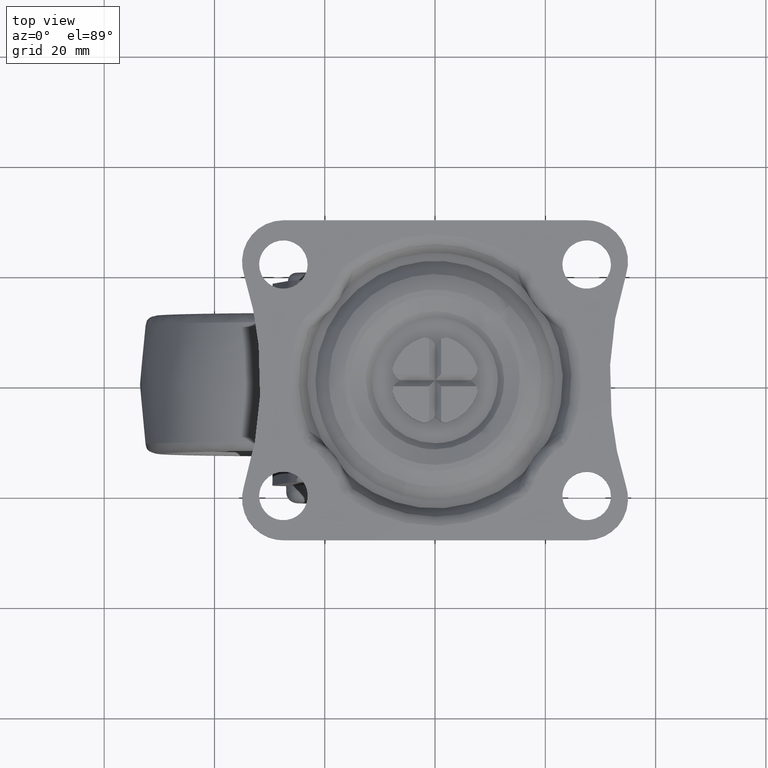
[diagram: clean part render]
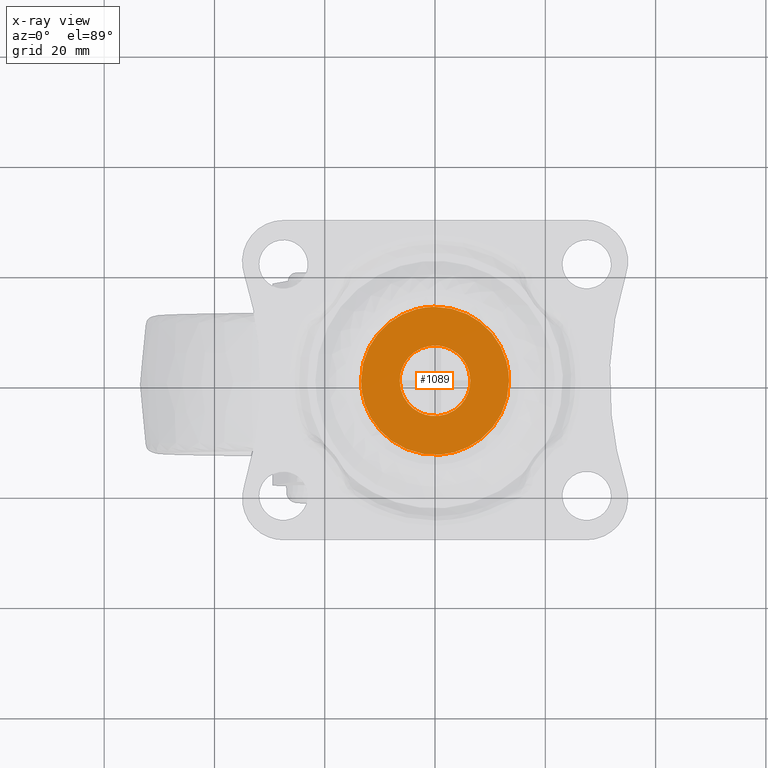
[diagram: x-ray — body ghosted, one internal face saturated and labeled with its STEP entity id]
A machine part, top view, then the same camera in x-ray: the body is ghosted and one INTERNAL B-rep face — a face not visible from any outside direction — is saturated and labeled: STEP entity #1089.
In plain terms, the highlighted face is a freeform B-spline surface patch.
Its self-contained STEP definition (entity closure, byte-faithful):
#85=CARTESIAN_POINT('',(-0.755419101927816,-6.355260968712657,-7.400002000000000));
#86=VERTEX_POINT('',#85);
#92=CARTESIAN_POINT('',(6.400000000000014,0.0,-7.400002000000000));
#93=VERTEX_POINT('',#92);
#94=CARTESIAN_POINT('',(-0.755419101927816,-6.355260968712657,-7.400002000000000));
#95=CARTESIAN_POINT('',(-0.379034365898103,-6.400000000000000,-7.400002000000000));
#96=CARTESIAN_POINT('',(1.272505E-014,-6.400000000000000,-7.400002000000000));
#97=CARTESIAN_POINT('',(6.400000000000012,-6.400000000000000,-7.400001999999999));
#98=CARTESIAN_POINT('',(6.400000000000014,0.0,-7.400002000000000));
#106=(BOUNDED_CURVE()B_SPLINE_CURVE(2,(#94,#95,#96,#97,#98),.UNSPECIFIED.,.F.,.U.)B_SPLINE_CURVE_WITH_KNOTS((3,2,3),(0.229562473509019,0.250000000000000,0.500000000000000),.UNSPECIFIED.)CURVE()GEOMETRIC_REPRESENTATION_ITEM()RATIONAL_B_SPLINE_CURVE((0.956026754174899,0.976055948325885,1.0,0.707106781186548,1.0))REPRESENTATION_ITEM(''));
#107=EDGE_CURVE('',#86,#93,#106,.T.);
#109=CARTESIAN_POINT('',(0.390710653168339,6.388062709891065,-7.400002000000000));
#110=VERTEX_POINT('',#109);
#111=CARTESIAN_POINT('',(6.400000000000014,0.0,-7.400002000000000));
#112=CARTESIAN_POINT('',(6.400000000000012,6.020518827922171,-7.400001999999998));
#113=CARTESIAN_POINT('',(0.390710653168339,6.388062709891065,-7.400002000000001));
#121=(BOUNDED_CURVE()B_SPLINE_CURVE(2,(#111,#112,#113),.UNSPECIFIED.,.F.,.U.)B_SPLINE_CURVE_WITH_KNOTS((3,3),(0.500000000000000,0.739332962234122),.UNSPECIFIED.)CURVE()GEOMETRIC_REPRESENTATION_ITEM()RATIONAL_B_SPLINE_CURVE((1.0,0.719603993292358,0.976072041656386))REPRESENTATION_ITEM(''));
#122=EDGE_CURVE('',#93,#110,#121,.T.);
#196=CARTESIAN_POINT('',(-6.399999999999987,0.0,-7.400002000000000));
#197=VERTEX_POINT('',#196);
#198=CARTESIAN_POINT('',(0.390710653168339,6.388062709891065,-7.400002000000000));
#199=CARTESIAN_POINT('',(0.195537685256630,6.400000000000000,-7.400002000000000));
#200=CARTESIAN_POINT('',(1.272505E-014,6.400000000000000,-7.400002000000000));
#201=CARTESIAN_POINT('',(-6.399999999999985,6.400000000000000,-7.400001999999999));
#202=CARTESIAN_POINT('',(-6.399999999999987,0.0,-7.400002000000000));
#210=(BOUNDED_CURVE()B_SPLINE_CURVE(2,(#198,#199,#200,#201,#202),.UNSPECIFIED.,.F.,.U.)B_SPLINE_CURVE_WITH_KNOTS((3,2,3),(0.739332962234122,0.750000000000000,1.0),.UNSPECIFIED.)CURVE()GEOMETRIC_REPRESENTATION_ITEM()RATIONAL_B_SPLINE_CURVE((0.976072041656386,0.987502787894190,1.0,0.707106781186548,1.0))REPRESENTATION_ITEM(''));
#211=EDGE_CURVE('',#110,#197,#210,.T.);
#213=CARTESIAN_POINT('',(-6.399999999999987,0.0,-7.400002000000000));
#214=CARTESIAN_POINT('',(-6.399999999999985,-5.684316965864336,-7.400001999999998));
#215=CARTESIAN_POINT('',(-0.755419101927816,-6.355260968712657,-7.400002000000001));
#223=(BOUNDED_CURVE()B_SPLINE_CURVE(2,(#213,#214,#215),.UNSPECIFIED.,.F.,.U.)B_SPLINE_CURVE_WITH_KNOTS((3,3),(0.0,0.229562473509019),.UNSPECIFIED.)CURVE()GEOMETRIC_REPRESENTATION_ITEM()RATIONAL_B_SPLINE_CURVE((1.0,0.731050832860663,0.956026754174899))REPRESENTATION_ITEM(''));
#224=EDGE_CURVE('',#197,#86,#223,.T.);
#855=CARTESIAN_POINT('',(0.936053228665732,-13.390664404581671,-7.400002000434680));
#856=VERTEX_POINT('',#855);
#857=CARTESIAN_POINT('',(-13.423341194979500,0.0,-7.400002000000000));
#858=VERTEX_POINT('',#857);
#859=CARTESIAN_POINT('',(0.936053228665732,-13.390664404581667,-7.400002000434680));
#860=CARTESIAN_POINT('',(0.468596973318905,-13.423341194979503,-7.400002000000000));
#861=CARTESIAN_POINT('',(0.0,-13.423341194979500,-7.400002000000000));
#862=CARTESIAN_POINT('',(-13.423341194979502,-13.423341194979502,-7.400001999999999));
#863=CARTESIAN_POINT('',(-13.423341194979500,0.0,-7.400002000000000));
#871=(BOUNDED_CURVE()B_SPLINE_CURVE(2,(#859,#860,#861,#862,#863),.UNSPECIFIED.,.F.,.U.)B_SPLINE_CURVE_WITH_KNOTS((3,2,3),(0.737833686532125,0.750000000000000,1.0),.UNSPECIFIED.)CURVE()GEOMETRIC_REPRESENTATION_ITEM()RATIONAL_B_SPLINE_CURVE((0.972879876380702,0.985746277149203,1.0,0.707106781186548,1.0))REPRESENTATION_ITEM(''));
#872=EDGE_CURVE('',#856,#858,#871,.T.);
#874=CARTESIAN_POINT('',(-0.168678240991914,13.422281344651530,-7.400002000500553));
#875=VERTEX_POINT('',#874);
#876=CARTESIAN_POINT('',(-13.423341194979500,0.0,-7.400002000000000));
#877=CARTESIAN_POINT('',(-13.423341194979503,13.255709568933391,-7.400001999999999));
#878=CARTESIAN_POINT('',(-0.168678240991914,13.422281344651532,-7.400002000500553));
#886=(BOUNDED_CURVE()B_SPLINE_CURVE(2,(#876,#877,#878),.UNSPECIFIED.,.F.,.U.)B_SPLINE_CURVE_WITH_KNOTS((3,3),(0.0,0.247784295917414),.UNSPECIFIED.)CURVE()GEOMETRIC_REPRESENTATION_ITEM()RATIONAL_B_SPLINE_CURVE((1.0,0.709702639989294,0.994854295634084))REPRESENTATION_ITEM(''));
#887=EDGE_CURVE('',#858,#875,#886,.T.);
#989=CARTESIAN_POINT('',(13.423341194979500,0.0,-7.400002000000000));
#990=VERTEX_POINT('',#989);
#991=CARTESIAN_POINT('',(13.423341194979500,0.0,-7.400002000000000));
#992=CARTESIAN_POINT('',(13.423341194979503,-12.517760277530748,-7.400002000000001));
#993=CARTESIAN_POINT('',(0.936053228665732,-13.390664404581676,-7.400002000434680));
#1001=(BOUNDED_CURVE()B_SPLINE_CURVE(2,(#991,#992,#993),.UNSPECIFIED.,.F.,.U.)B_SPLINE_CURVE_WITH_KNOTS((3,3),(0.500000000000000,0.737833686532125),.UNSPECIFIED.)CURVE()GEOMETRIC_REPRESENTATION_ITEM()RATIONAL_B_SPLINE_CURVE((1.0,0.721360504037345,0.972879876380702))REPRESENTATION_ITEM(''));
#1002=EDGE_CURVE('',#990,#856,#1001,.T.);
#1036=CARTESIAN_POINT('',(-0.168678240991914,13.422281344651529,-7.400002000500553));
#1037=CARTESIAN_POINT('',(-0.084342450239262,13.423341194979505,-7.400002000000000));
#1038=CARTESIAN_POINT('',(0.0,13.423341194979500,-7.400002000000000));
#1039=CARTESIAN_POINT('',(13.423341194979502,13.423341194979502,-7.400001999999999));
#1040=CARTESIAN_POINT('',(13.423341194979500,0.0,-7.400002000000000));
#1048=(BOUNDED_CURVE()B_SPLINE_CURVE(2,(#1036,#1037,#1038,#1039,#1040),.UNSPECIFIED.,.F.,.U.)B_SPLINE_CURVE_WITH_KNOTS((3,2,3),(0.247784295917414,0.250000000000000,0.500000000000000),.UNSPECIFIED.)CURVE()GEOMETRIC_REPRESENTATION_ITEM()RATIONAL_B_SPLINE_CURVE((0.994854295634084,0.997404141197254,1.0,0.707106781186548,1.0))REPRESENTATION_ITEM(''));
#1049=EDGE_CURVE('',#875,#990,#1048,.T.);
#1072=CARTESIAN_POINT('',(-14.764332580391221,-14.762672511267271,-7.400002000000000));
#1073=CARTESIAN_POINT('',(14.764331620279039,-14.762672511267271,-7.400002000000000));
#1074=CARTESIAN_POINT('',(-14.764332580391221,14.763144384860350,-7.400002000000000));
#1075=CARTESIAN_POINT('',(14.764331620279039,14.763144384860350,-7.400002000000000));
#1076=B_SPLINE_SURFACE_WITH_KNOTS('',1,1,((#1072,#1074),(#1073,#1075)),.UNSPECIFIED.,.F.,.F.,.U.,(2,2),(2,2),(0.0,29.528664200670260),(0.0,29.525816896127619),.UNSPECIFIED.);
#1077=ORIENTED_EDGE('',*,*,#872,.F.);
#1078=ORIENTED_EDGE('',*,*,#1002,.F.);
#1079=ORIENTED_EDGE('',*,*,#1049,.F.);
#1080=ORIENTED_EDGE('',*,*,#887,.F.);
#1081=EDGE_LOOP('',(#1077,#1078,#1079,#1080));
#1082=FACE_OUTER_BOUND('',#1081,.T.);
#1083=ORIENTED_EDGE('',*,*,#122,.F.);
#1084=ORIENTED_EDGE('',*,*,#107,.F.);
#1085=ORIENTED_EDGE('',*,*,#224,.F.);
#1086=ORIENTED_EDGE('',*,*,#211,.F.);
#1087=EDGE_LOOP('',(#1083,#1084,#1085,#1086));
#1088=FACE_BOUND('',#1087,.T.);
#1089=ADVANCED_FACE('',(#1082,#1088),#1076,.T.);